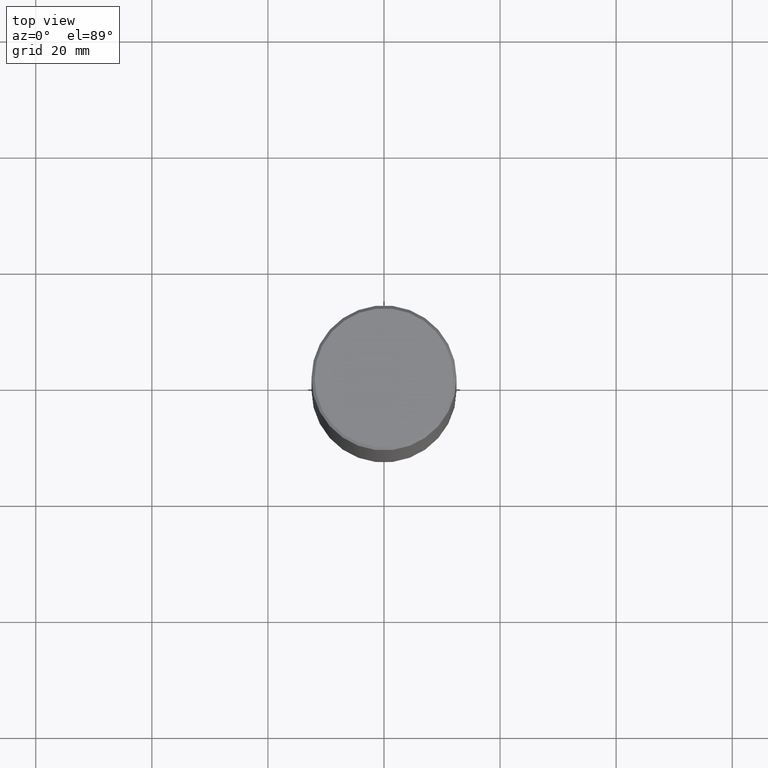
[diagram: clean part render]
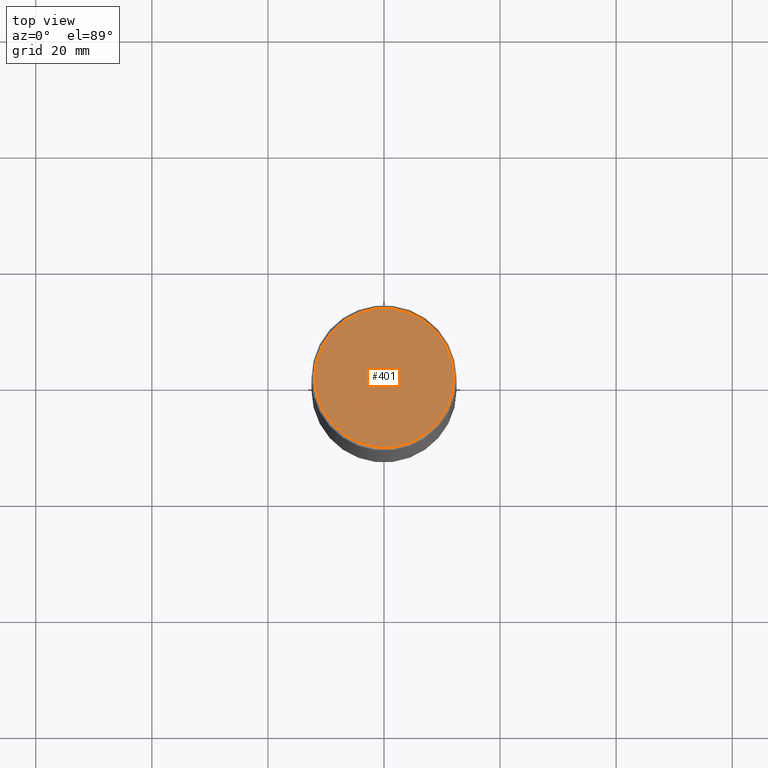
[diagram: same view with one face highlighted and labeled with its STEP entity id]
A machine part, top view. The second image highlights one B-rep face of the part: STEP entity #401.
In plain terms, the highlighted planar face has unit normal (0, -0, -1).
Its self-contained STEP definition (entity closure, byte-faithful):
#11 = DIRECTION ( 'NONE',  ( -2.445468806185136597E-29, 3.491481338843145583E-15, 1.000000000000000000 ) ) ;
#44 = CIRCLE ( 'NONE', #370, 0.4721500000000000696 ) ;
#49 = FACE_OUTER_BOUND ( 'NONE', #100, .T. ) ;
#78 = CIRCLE ( 'NONE', #337, 0.4721500000000000696 ) ;
#80 = DIRECTION ( 'NONE',  ( 2.438088387897960049E-29, -3.491481338843145188E-15, -1.000000000000000000 ) ) ;
#91 = VERTEX_POINT ( 'NONE', #248 ) ;
#100 = EDGE_LOOP ( 'NONE', ( #300, #148 ) ) ;
#101 = CARTESIAN_POINT ( 'NONE',  ( 0.4721500000000000696, -3.342703923013975763E-15, -2.262311619752986034E-16 ) ) ;
#148 = ORIENTED_EDGE ( 'NONE', *, *, #211, .T. ) ;
#201 = CARTESIAN_POINT ( 'NONE',  ( 3.297005828269570364E-15, 0.4721500000000000696, -1.761618495122452208E-15 ) ) ;
#206 = EDGE_CURVE ( 'NONE', #91, #251, #78, .T. ) ;
#211 = EDGE_CURVE ( 'NONE', #251, #91, #44, .T. ) ;
#231 = DIRECTION ( 'NONE',  ( 1.000000000000000000, -6.982962677686266711E-15, 4.875605319575677862E-29 ) ) ;
#248 = CARTESIAN_POINT ( 'NONE',  ( -0.4721500000000000696, 3.331920641658001224E-15, -2.262311619753449490E-16 ) ) ;
#251 = VERTEX_POINT ( 'NONE', #101 ) ;
#255 = AXIS2_PLACEMENT_3D ( 'NONE', #201, #80, #333 ) ;
#258 = CARTESIAN_POINT ( 'NONE',  ( 5.532412495976664402E-45, -7.898818803016371119E-31, -2.262311619753217762E-16 ) ) ;
#264 = CARTESIAN_POINT ( 'NONE',  ( 5.532412495976664402E-45, -7.898818803016371119E-31, -2.262311619753217762E-16 ) ) ;
#265 = DIRECTION ( 'NONE',  ( -2.445468806185136597E-29, 3.491481338843145583E-15, 1.000000000000000000 ) ) ;
#267 = PLANE ( 'NONE',  #255 ) ;
#300 = ORIENTED_EDGE ( 'NONE', *, *, #206, .T. ) ;
#333 = DIRECTION ( 'NONE',  ( -1.000000000000000000, 6.982962677686265922E-15, -4.876176775795935793E-29 ) ) ;
#337 = AXIS2_PLACEMENT_3D ( 'NONE', #264, #11, #231 ) ;
#354 = DIRECTION ( 'NONE',  ( 1.000000000000000000, -6.982962677686266711E-15, 4.875605319575677862E-29 ) ) ;
#370 = AXIS2_PLACEMENT_3D ( 'NONE', #258, #265, #354 ) ;
#401 = ADVANCED_FACE ( 'NONE', ( #49 ), #267, .F. ) ;